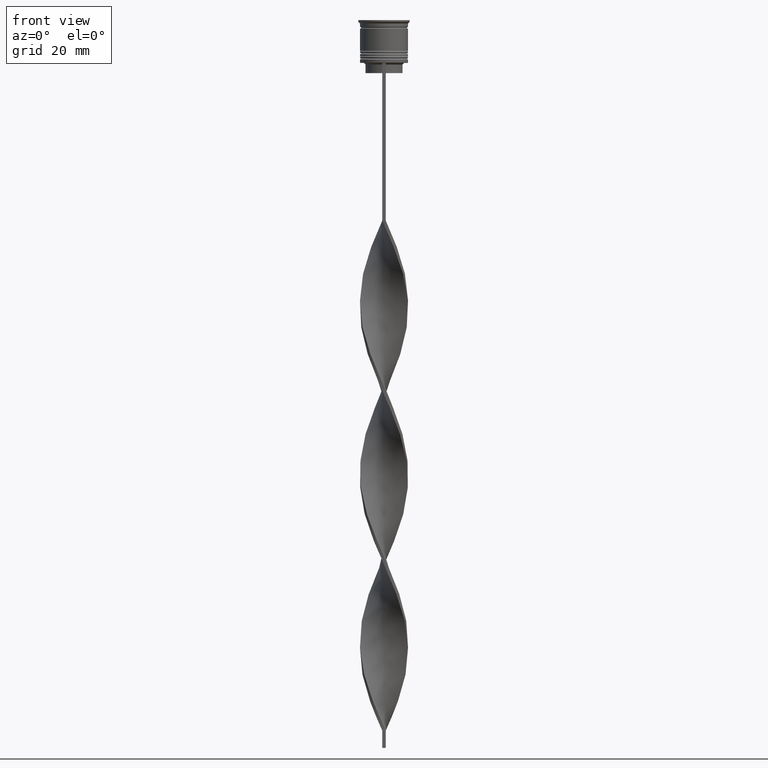
[diagram: clean part render]
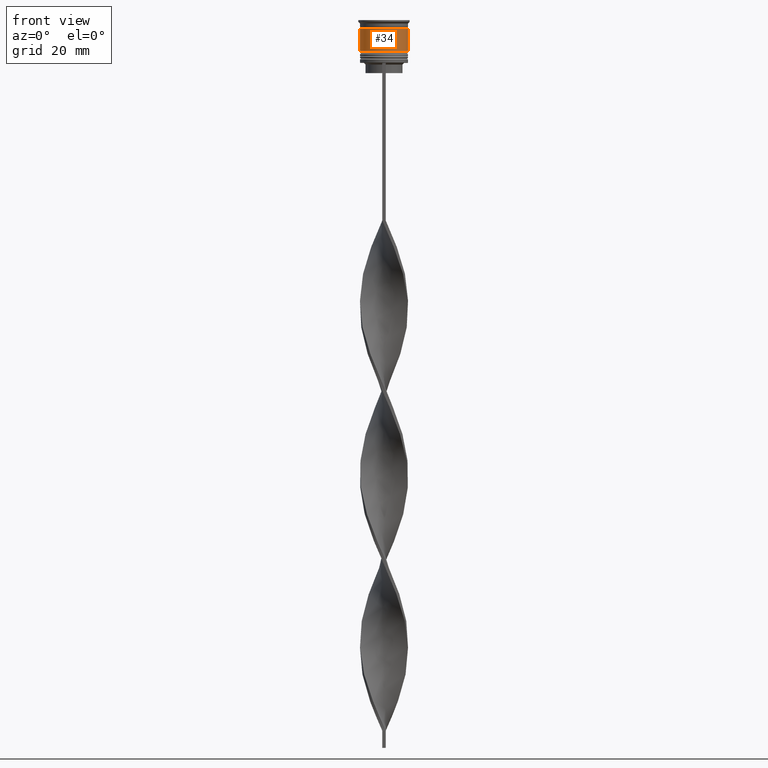
[diagram: same view with one face highlighted and labeled with its STEP entity id]
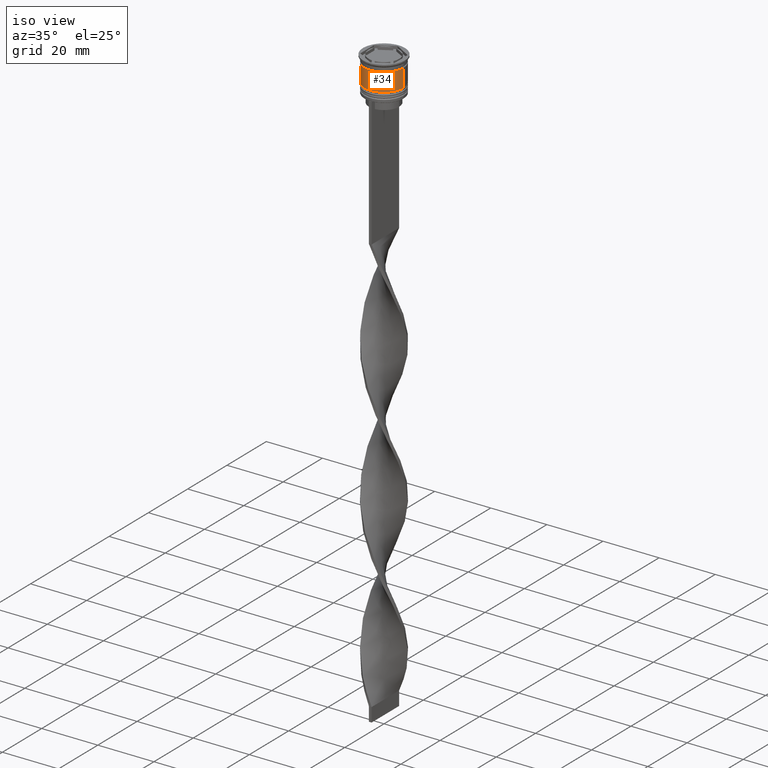
[diagram: same view with one face highlighted and labeled with its STEP entity id]
A machine part, front view. The second image highlights one B-rep face of the part: STEP entity #34.
A second angle (iso view) of the same face is appended — the face is thin or edge-on in the first view.
In plain terms, the highlighted cylindrical surface (edge-blend (fillet) strip) has radius 7 mm, axis along (-0, -0, 1).
Its self-contained STEP definition (entity closure, byte-faithful):
#34 = ADVANCED_FACE ( 'NONE', ( #1820 ), #3622, .T. ) ;
#316 = DIRECTION ( 'NONE',  ( 1.000000000000000000, 0.000000000000000000, 0.000000000000000000 ) ) ;
#476 = VERTEX_POINT ( 'NONE', #1860 ) ;
#809 = VERTEX_POINT ( 'NONE', #3142 ) ;
#907 = CARTESIAN_POINT ( 'NONE',  ( -6.999999999999999112, 8.572527594031472204E-16, 0.000000000000000000 ) ) ;
#926 = DIRECTION ( 'NONE',  ( -0.000000000000000000, -0.000000000000000000, 1.000000000000000000 ) ) ;
#941 = AXIS2_PLACEMENT_3D ( 'NONE', #3602, #926, #316 ) ;
#1060 = VERTEX_POINT ( 'NONE', #1191 ) ;
#1152 = EDGE_LOOP ( 'NONE', ( #2736, #3595, #1382, #2097 ) ) ;
#1157 = DIRECTION ( 'NONE',  ( 1.000000000000000000, 0.000000000000000000, 0.000000000000000000 ) ) ;
#1191 = CARTESIAN_POINT ( 'NONE',  ( 7.000000000000000888, 0.000000000000000000, -9.000000000000001776 ) ) ;
#1241 = CARTESIAN_POINT ( 'NONE',  ( 0.000000000000000000, 0.000000000000000000, -9.000000000000001776 ) ) ;
#1291 = VERTEX_POINT ( 'NONE', #2114 ) ;
#1382 = ORIENTED_EDGE ( 'NONE', *, *, #3855, .T. ) ;
#1757 = CARTESIAN_POINT ( 'NONE',  ( 6.999999999999999112, 0.000000000000000000, 0.000000000000000000 ) ) ;
#1774 = VECTOR ( 'NONE', #3834, 1000.000000000000000 ) ;
#1782 = AXIS2_PLACEMENT_3D ( 'NONE', #1241, #2435, #3696 ) ;
#1820 = FACE_OUTER_BOUND ( 'NONE', #1152, .T. ) ;
#1860 = CARTESIAN_POINT ( 'NONE',  ( -7.000000000000000888, 8.572527594031474176E-16, -9.000000000000001776 ) ) ;
#2097 = ORIENTED_EDGE ( 'NONE', *, *, #3280, .F. ) ;
#2114 = CARTESIAN_POINT ( 'NONE',  ( 6.999999999999997335, 0.000000000000000000, -2.500000000000000444 ) ) ;
#2404 = LINE ( 'NONE', #907, #3531 ) ;
#2435 = DIRECTION ( 'NONE',  ( -0.000000000000000000, -0.000000000000000000, 1.000000000000000000 ) ) ;
#2539 = EDGE_CURVE ( 'NONE', #476, #1060, #3220, .T. ) ;
#2736 = ORIENTED_EDGE ( 'NONE', *, *, #2793, .F. ) ;
#2793 = EDGE_CURVE ( 'NONE', #476, #809, #2404, .T. ) ;
#2900 = CIRCLE ( 'NONE', #3728, 6.999999999999997335 ) ;
#3008 = LINE ( 'NONE', #1757, #1774 ) ;
#3142 = CARTESIAN_POINT ( 'NONE',  ( -6.999999999999997335, 8.572527594031471218E-16, -2.500000000000000444 ) ) ;
#3220 = CIRCLE ( 'NONE', #1782, 7.000000000000000888 ) ;
#3280 = EDGE_CURVE ( 'NONE', #809, #1291, #2900, .T. ) ;
#3295 = CARTESIAN_POINT ( 'NONE',  ( 0.000000000000000000, 0.000000000000000000, -2.500000000000000444 ) ) ;
#3531 = VECTOR ( 'NONE', #3605, 1000.000000000000000 ) ;
#3547 = DIRECTION ( 'NONE',  ( -0.000000000000000000, -0.000000000000000000, 1.000000000000000000 ) ) ;
#3595 = ORIENTED_EDGE ( 'NONE', *, *, #2539, .T. ) ;
#3602 = CARTESIAN_POINT ( 'NONE',  ( 0.000000000000000000, 0.000000000000000000, 0.000000000000000000 ) ) ;
#3605 = DIRECTION ( 'NONE',  ( -0.000000000000000000, -0.000000000000000000, 1.000000000000000000 ) ) ;
#3622 = CYLINDRICAL_SURFACE ( 'NONE', #941, 6.999999999999999112 ) ;
#3696 = DIRECTION ( 'NONE',  ( 1.000000000000000000, 0.000000000000000000, 0.000000000000000000 ) ) ;
#3728 = AXIS2_PLACEMENT_3D ( 'NONE', #3295, #3547, #1157 ) ;
#3834 = DIRECTION ( 'NONE',  ( -0.000000000000000000, -0.000000000000000000, 1.000000000000000000 ) ) ;
#3855 = EDGE_CURVE ( 'NONE', #1060, #1291, #3008, .T. ) ;